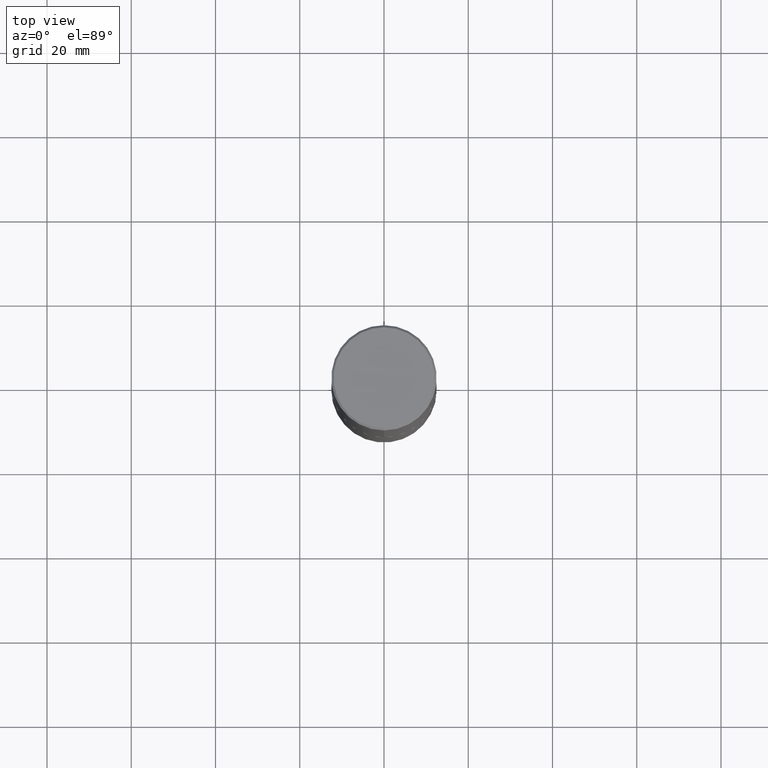
[diagram: clean part render]
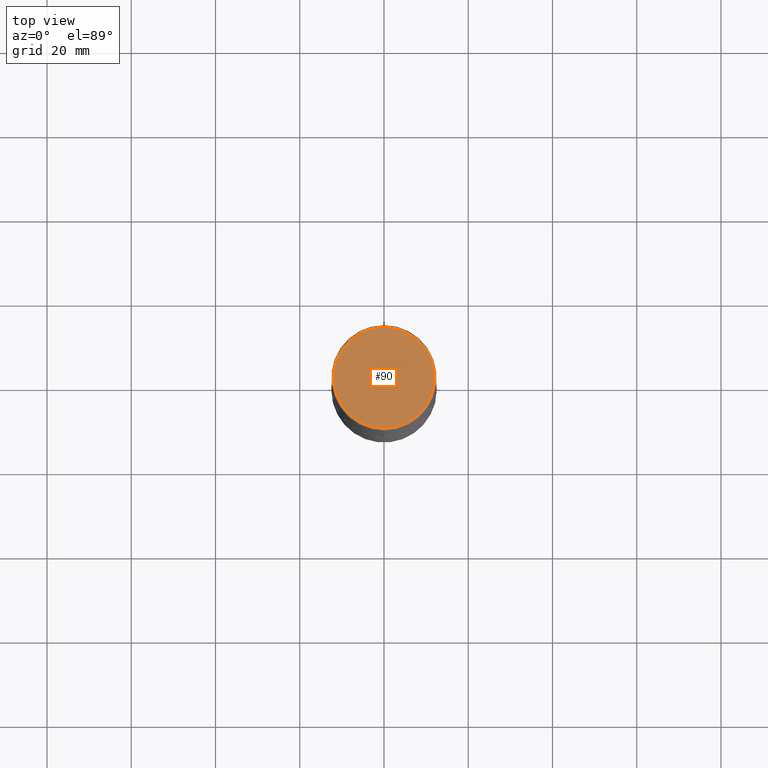
[diagram: same view with one face highlighted and labeled with its STEP entity id]
A machine part, top view. The second image highlights one B-rep face of the part: STEP entity #90.
In plain terms, the highlighted planar face has unit normal (0, -0, -1).
Its self-contained STEP definition (entity closure, byte-faithful):
#22 = CARTESIAN_POINT ( 'NONE',  ( -3.307789109625541747E-15, -0.4721499999999996255, 1.869778885941491673E-15 ) ) ;
#30 = ORIENTED_EDGE ( 'NONE', *, *, #204, .T. ) ;
#77 = DIRECTION ( 'NONE',  ( -6.982962677686265922E-15, -1.000000000000000000, 3.490754157143982946E-15 ) ) ;
#78 = CARTESIAN_POINT ( 'NONE',  ( -5.420756467185317189E-45, 7.736185299407739239E-31, 2.216193106459615290E-16 ) ) ;
#90 = ADVANCED_FACE ( 'NONE', ( #411 ), #224, .F. ) ;
#138 = ORIENTED_EDGE ( 'NONE', *, *, #167, .T. ) ;
#139 = VERTEX_POINT ( 'NONE', #22 ) ;
#160 = CIRCLE ( 'NONE', #265, 0.4721499999999996255 ) ;
#167 = EDGE_CURVE ( 'NONE', #139, #254, #179, .T. ) ;
#170 = EDGE_LOOP ( 'NONE', ( #30, #138 ) ) ;
#179 = CIRCLE ( 'NONE', #239, 0.4721499999999996255 ) ;
#195 = CARTESIAN_POINT ( 'NONE',  ( 3.297005828269567997E-15, 0.4721499999999996255, -1.537349919972549256E-15 ) ) ;
#204 = EDGE_CURVE ( 'NONE', #254, #139, #160, .T. ) ;
#211 = CARTESIAN_POINT ( 'NONE',  ( -5.420756467185317189E-45, 7.736185299407739239E-31, 2.216193106459615290E-16 ) ) ;
#214 = DIRECTION ( 'NONE',  ( -6.982962677686265922E-15, -1.000000000000000000, 3.490754157143982946E-15 ) ) ;
#224 = PLANE ( 'NONE',  #401 ) ;
#239 = AXIS2_PLACEMENT_3D ( 'NONE', #211, #271, #77 ) ;
#254 = VERTEX_POINT ( 'NONE', #374 ) ;
#265 = AXIS2_PLACEMENT_3D ( 'NONE', #78, #342, #214 ) ;
#271 = DIRECTION ( 'NONE',  ( -2.445976594451651952E-29, 3.490754157143982552E-15, 1.000000000000000000 ) ) ;
#328 = DIRECTION ( 'NONE',  ( 2.445976594451651392E-29, -3.490754157143982552E-15, -1.000000000000000000 ) ) ;
#342 = DIRECTION ( 'NONE',  ( -2.445976594451651952E-29, 3.490754157143982552E-15, 1.000000000000000000 ) ) ;
#346 = DIRECTION ( 'NONE',  ( 6.982962677686265922E-15, 1.000000000000000000, -3.490754157143982552E-15 ) ) ;
#374 = CARTESIAN_POINT ( 'NONE',  ( 3.366835455046432084E-15, 0.4721499999999996255, -1.426540264649568516E-15 ) ) ;
#401 = AXIS2_PLACEMENT_3D ( 'NONE', #195, #328, #346 ) ;
#411 = FACE_OUTER_BOUND ( 'NONE', #170, .T. ) ;